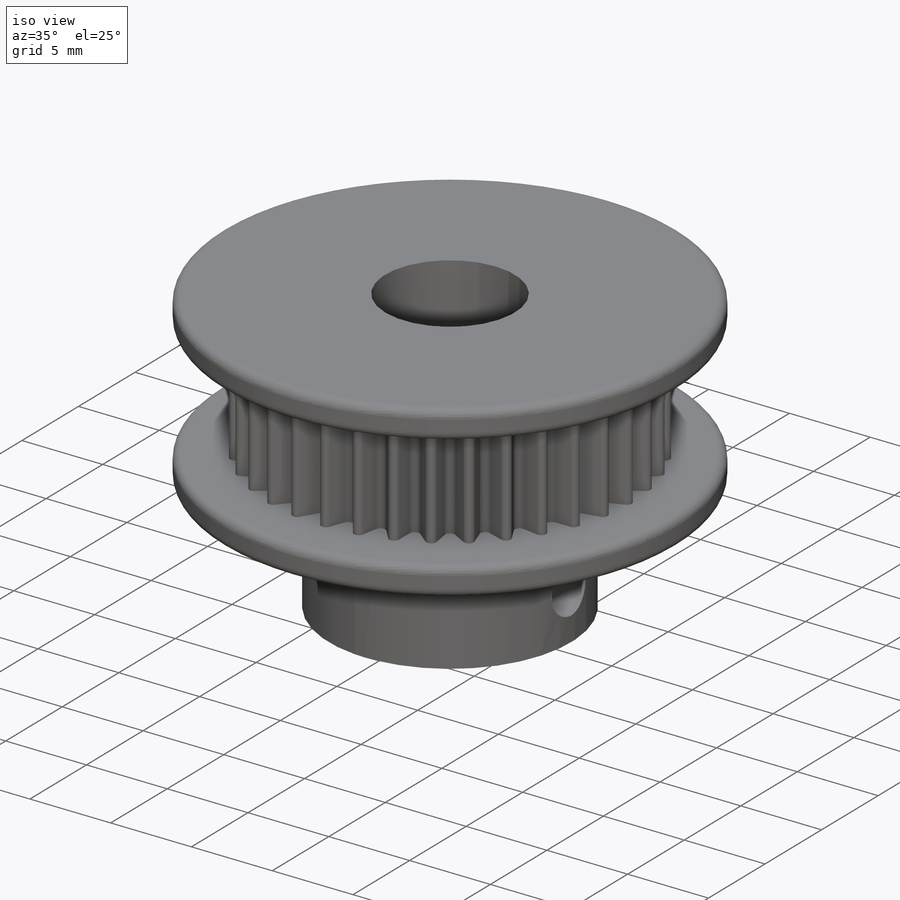
[diagram: iso view]
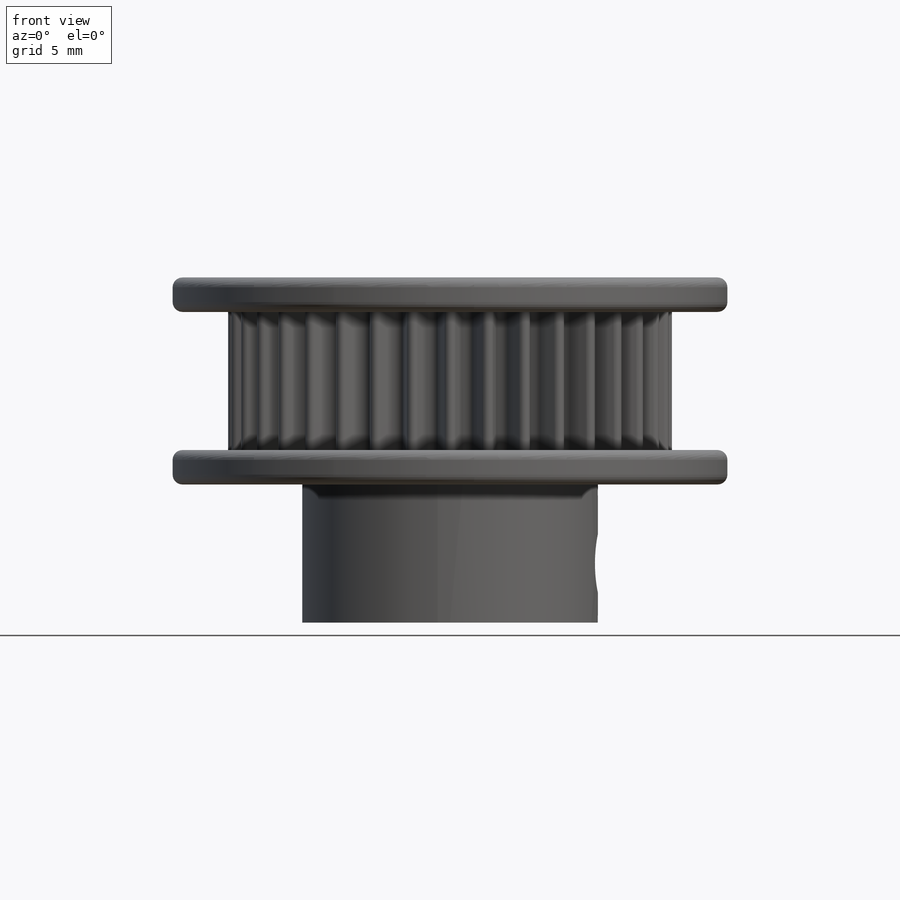
[diagram: front view]
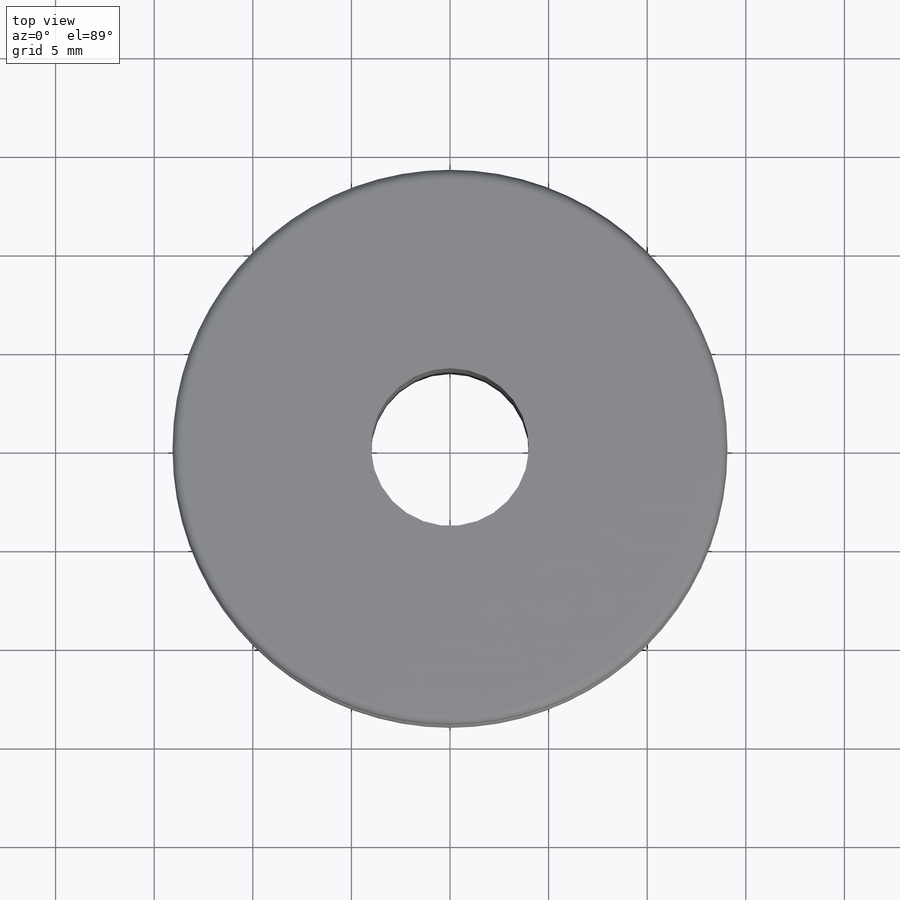
[diagram: top view]
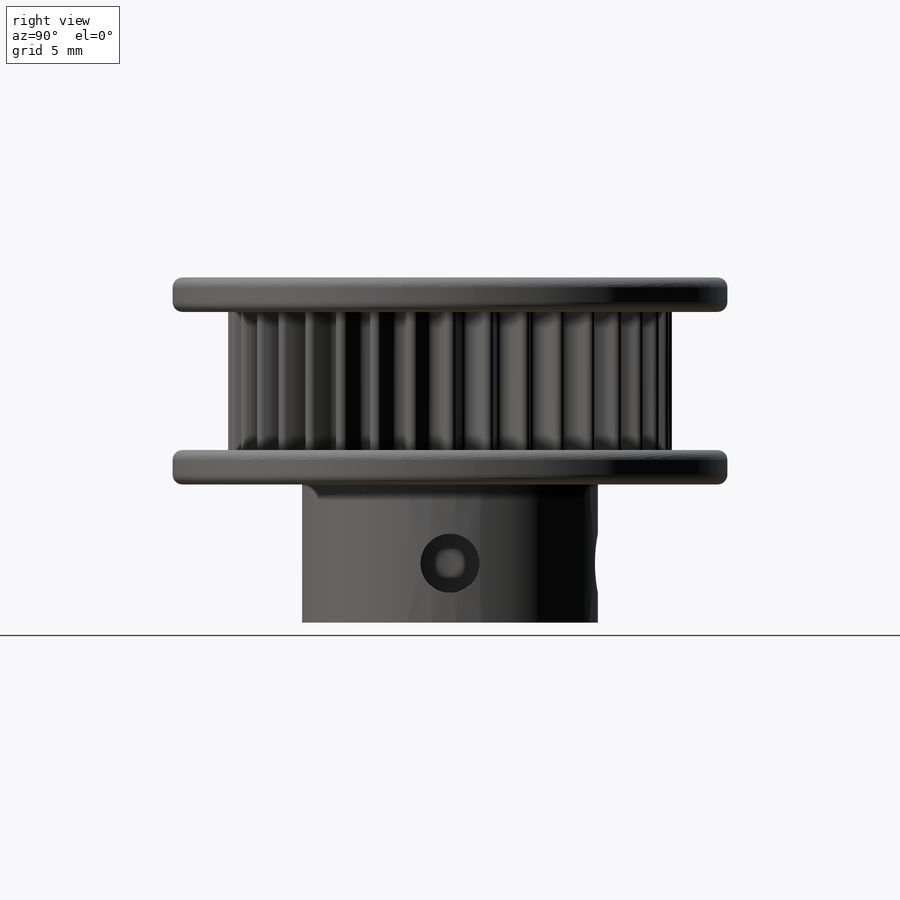
[diagram: right view]
SOLIDWORKS PART (.sldprt)
format: sldprt  version: not decoded by parser v0  size: 715,264 bytes
history: native  units: mm
features: sketch x8, extrude x4, cut_extrude x3, material x1, plane x1, fillet x1 (+13 scaffold rows collapsed)
feature tree (31):
  scaffold x13  (default folders/planes/origin — collapsed)
  material  "6063-T5"
  sketch  "Sketch1"  dims[D1=15.0mm]
  extrude  "Boss-Extrude1"  Depth=7mm
  sketch  "Sketch7"  dims[D1=28.13mm]
  extrude  "Boss-Extrude5"  Depth=1.75mm
  sketch  "Sketch9"  dims[c1.D1=22.5mm c1.D5=0.6mm c2.D1=0.6mm c2.D6=0.6mm c2.D7=22.5mm c2.D8=0.6mm c2.D2=0.6mm c2.D3=0.6mm c3.D1=2.0mm c3.D2=1.4mm c3.D5=~1.916091mm c3.D6=~10.780433mm c4.D6=10.0deg c4.D8=1.4mm c4.D2=0.6mm]
  extrude  "Boss-Extrude7"  Depth=7mm
  sketch  "Sketch8"
  extrude  "Boss-Extrude6"  Depth=1.75mm
  sketch  "Sketch4"  dims[D1=8.0mm]
  cut_extrude  "Cut-Extrude4"  [1 undecoded]
  sketch  "Sketch5"  dims[D1=3.0mm D2=3.0mm]
  cut_extrude  "Cut-Extrude2"  [1 undecoded]
  sketch  "Sketch6"  dims[D1=3.0mm D2=3.0mm]
  cut_extrude  "Cut-Extrude3"  [1 undecoded]
  plane  "Plane1"
  fillet  "Fillet1"  Radius=0.5mm
  sketch  "Sketch10"
decode coverage: 11 of 16 modeling features carry decoded parameters
note: ~ marks probable driven/reference dimensions
note: 3 parameter values undecoded
summary: no parameter record found for 3 features
note: suppression state not decoded; provenance and decode notes live in map.json
